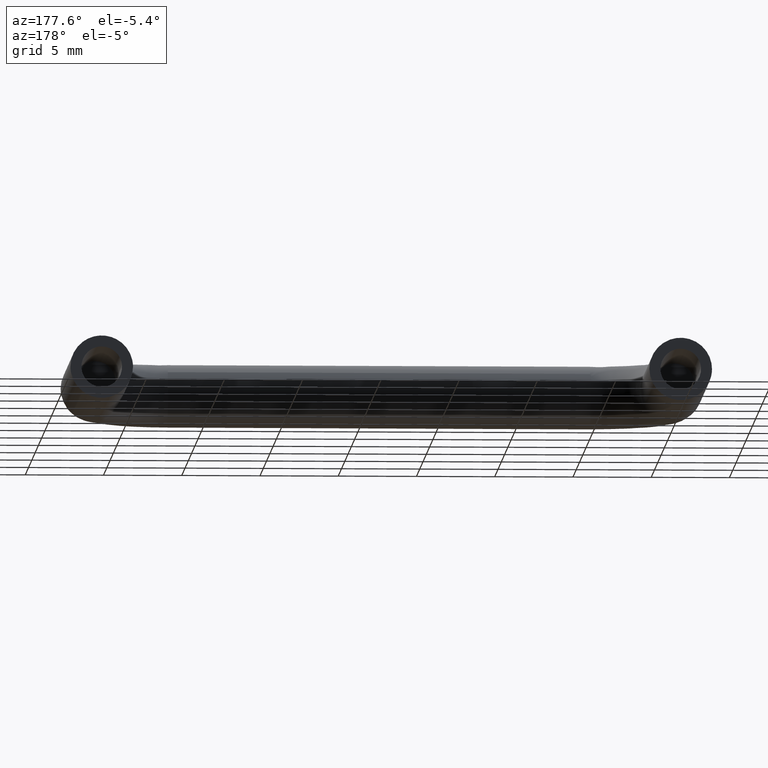
[diagram: clean part render]
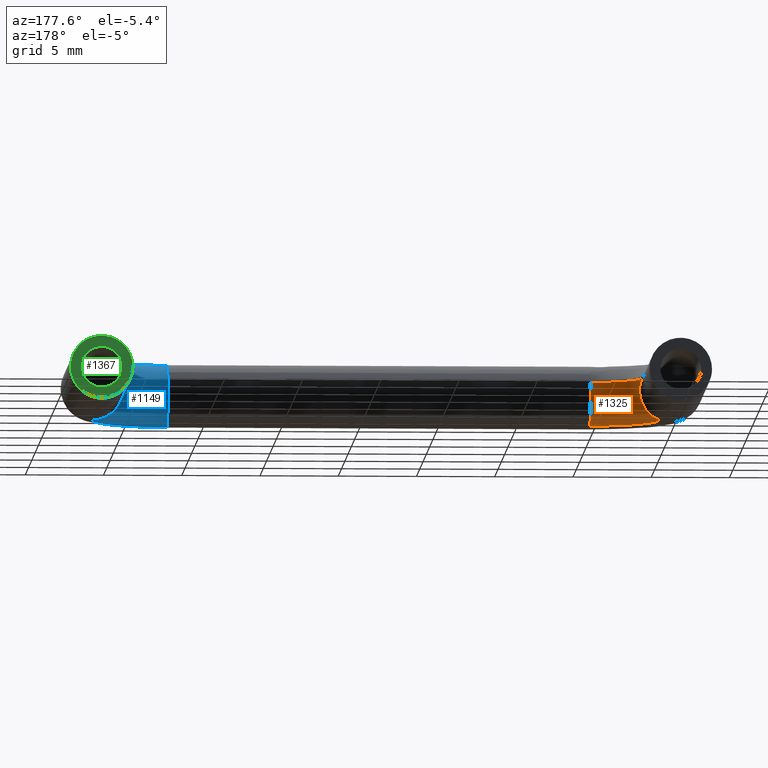
[diagram: same view with three faces highlighted in distinct colors, each labeled with its STEP entity id]
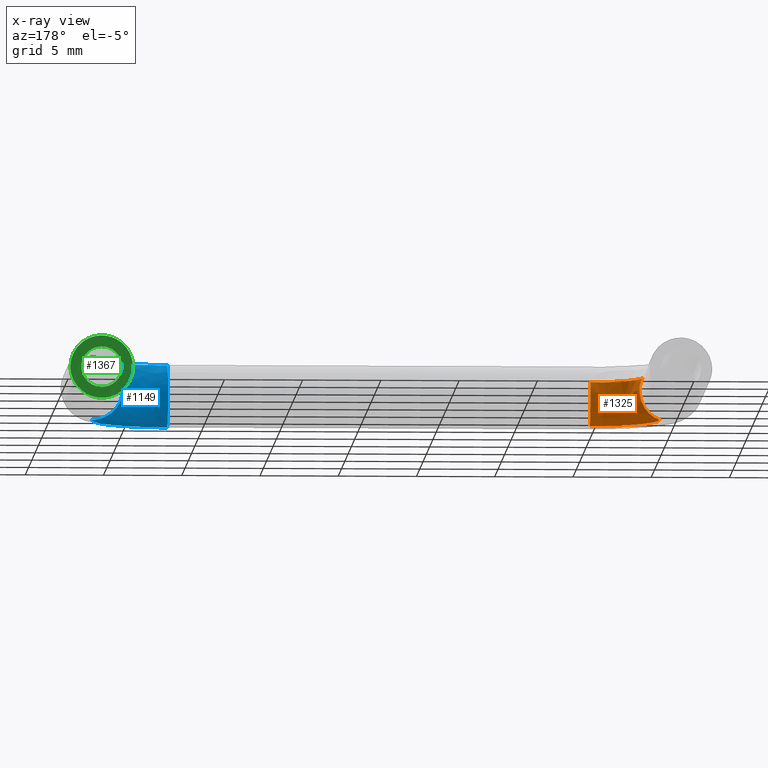
[diagram: x-ray of the same camera — body ghosted, the three highlighted faces saturated]
A machine part, auxiliary view with three faces highlighted in distinct colors.
The next image is the same camera in x-ray (body ghosted, the three faces saturated) — at least one of them is partly hidden behind the body in this view.
Their STEP definitions:

[orange] entity #1325 — the highlighted face is a freeform B-spline surface patch.
#802=CARTESIAN_POINT('',(4.999998076415995,-19.276704659011020,-1.864629681651536));
#803=VERTEX_POINT('',#802);
#819=CARTESIAN_POINT('',(5.0,-18.0,0.0));
#820=VERTEX_POINT('',#819);
#821=CARTESIAN_POINT('',(5.0,-18.0,0.0));
#822=CARTESIAN_POINT('',(4.999999038207998,-18.000000000000355,-1.369392187168714));
#823=CARTESIAN_POINT('',(4.999998076415995,-19.276704659011028,-1.864629681651536));
#831=(BOUNDED_CURVE()B_SPLINE_CURVE(2,(#821,#822,#823),.UNSPECIFIED.,.F.,.U.)B_SPLINE_CURVE_WITH_KNOTS((3,3),(0.0,0.188590419563113),.UNSPECIFIED.)CURVE()GEOMETRIC_REPRESENTATION_ITEM()RATIONAL_B_SPLINE_CURVE((1.0,0.779052579907122,0.891453693067869))REPRESENTATION_ITEM(''));
#832=EDGE_CURVE('',#820,#803,#831,.T.);
#834=CARTESIAN_POINT('',(5.000000000040116,-18.179788058653141,0.828751162037366));
#835=VERTEX_POINT('',#834);
#836=CARTESIAN_POINT('',(5.000000000040116,-18.179788058653138,0.828751162037366));
#837=CARTESIAN_POINT('',(5.0,-18.000000000000004,0.433877059606800));
#838=CARTESIAN_POINT('',(5.0,-18.0,0.0));
#846=(BOUNDED_CURVE()B_SPLINE_CURVE(2,(#836,#837,#838),.UNSPECIFIED.,.F.,.U.)B_SPLINE_CURVE_WITH_KNOTS((3,3),(0.929624510033230,1.0),.UNSPECIFIED.)CURVE()GEOMETRIC_REPRESENTATION_ITEM()RATIONAL_B_SPLINE_CURVE((0.881519651443544,0.917549984872236,1.0))REPRESENTATION_ITEM(''));
#847=EDGE_CURVE('',#835,#820,#846,.T.);
#972=CARTESIAN_POINT('',(1.820211941307585,-15.000000000132131,0.828751162123636));
#973=VERTEX_POINT('',#972);
#989=CARTESIAN_POINT('',(2.000000000000002,-15.0,0.0));
#990=VERTEX_POINT('',#989);
#991=CARTESIAN_POINT('',(1.820211941307586,-15.000000000132140,0.828751162123636));
#992=CARTESIAN_POINT('',(2.000000000000002,-14.999999999999998,0.433877059706052));
#993=CARTESIAN_POINT('',(2.000000000000002,-15.0,0.0));
#1001=(BOUNDED_CURVE()B_SPLINE_CURVE(2,(#991,#992,#993),.UNSPECIFIED.,.F.,.U.)B_SPLINE_CURVE_WITH_KNOTS((3,3),(0.929624510018459,1.0),.UNSPECIFIED.)CURVE()GEOMETRIC_REPRESENTATION_ITEM()RATIONAL_B_SPLINE_CURVE((0.881519651428418,0.917549984854930,1.0))REPRESENTATION_ITEM(''));
#1002=EDGE_CURVE('',#973,#990,#1001,.T.);
#1004=CARTESIAN_POINT('',(0.723292547146406,-15.000000000216991,-1.864630765390957));
#1005=VERTEX_POINT('',#1004);
#1006=CARTESIAN_POINT('',(2.000000000000002,-15.0,0.0));
#1007=CARTESIAN_POINT('',(2.000000000000002,-15.000000000000007,-1.369394387691899));
#1008=CARTESIAN_POINT('',(0.723292547146406,-15.000000000216989,-1.864630765390957));
#1016=(BOUNDED_CURVE()B_SPLINE_CURVE(2,(#1006,#1007,#1008),.UNSPECIFIED.,.F.,.U.)B_SPLINE_CURVE_WITH_KNOTS((3,3),(0.0,0.188590655656687),.UNSPECIFIED.)CURVE()GEOMETRIC_REPRESENTATION_ITEM()RATIONAL_B_SPLINE_CURVE((1.0,0.779052303306294,0.891453974494995))REPRESENTATION_ITEM(''));
#1017=EDGE_CURVE('',#990,#1005,#1016,.T.);
#1247=CARTESIAN_POINT('',(1.820211941307585,-15.000000000132136,0.828751162123636));
#1248=CARTESIAN_POINT('',(1.820211941584447,-17.580459706936388,0.828751161986568));
#1249=CARTESIAN_POINT('',(4.345400534915110,-18.111679873977490,0.828751161986568));
#1250=CARTESIAN_POINT('',(4.669157089520411,-18.179788058638351,0.828751161986568));
#1251=CARTESIAN_POINT('',(5.000000000040116,-18.179788058653138,0.828751162037366));
#1259=(BOUNDED_CURVE()B_SPLINE_CURVE(2,(#1247,#1248,#1249,#1250,#1251),.UNSPECIFIED.,.F.,.U.)B_SPLINE_CURVE_WITH_KNOTS((3,2,3),(-3.759886875613357,-2.0,-1.712481691703814),.UNSPECIFIED.)CURVE()GEOMETRIC_REPRESENTATION_ITEM()RATIONAL_B_SPLINE_CURVE((0.940720929692562,0.753120240891190,1.0,0.959666469660559,0.930929567731927))REPRESENTATION_ITEM(''));
#1260=EDGE_CURVE('',#973,#835,#1259,.T.);
#1266=CARTESIAN_POINT('',(0.723292547146406,-15.000000000216993,-1.864630765390957));
#1267=CARTESIAN_POINT('',(0.723292547371148,-18.470629945235213,-1.864630325652976));
#1268=CARTESIAN_POINT('',(4.119585846781998,-19.185101770405229,-1.864629804808369));
#1269=CARTESIAN_POINT('',(4.555026517399832,-19.276704604219240,-1.864629738030590));
#1270=CARTESIAN_POINT('',(4.999998076415995,-19.276704659011028,-1.864629681651536));
#1278=(BOUNDED_CURVE()B_SPLINE_CURVE(2,(#1266,#1267,#1268,#1269,#1270),.UNSPECIFIED.,.F.,.U.)B_SPLINE_CURVE_WITH_KNOTS((3,2,3),(-3.759886875588480,-2.0,-1.712482294589041),.UNSPECIFIED.)CURVE()GEOMETRIC_REPRESENTATION_ITEM()RATIONAL_B_SPLINE_CURVE((0.919560165698679,0.736179404170773,0.977505800795127,0.938079623593068,0.909989170393271))REPRESENTATION_ITEM(''));
#1279=EDGE_CURVE('',#1005,#803,#1278,.T.);
#1284=CARTESIAN_POINT('',(1.829057610929353,-14.762984255795258,0.828751161986568));
#1285=CARTESIAN_POINT('',(1.621585411090140,-17.538674939261359,0.828751161986568));
#1286=CARTESIAN_POINT('',(4.345400534915110,-18.111679873977490,0.828751161986568));
#1287=CARTESIAN_POINT('',(4.790975590397401,-18.205414835408803,0.828751161986568));
#1288=CARTESIAN_POINT('',(5.244950349064282,-18.170339323211202,0.828751161986568));
#1289=CARTESIAN_POINT('',(2.655503317712398,-14.824757892841816,-0.991460779383422));
#1290=CARTESIAN_POINT('',(2.502104793076159,-16.877017694493450,-0.991460779383422));
#1291=CARTESIAN_POINT('',(4.516009411142735,-17.300679812419887,-0.991460779383422));
#1292=CARTESIAN_POINT('',(4.845453819495583,-17.369984542410425,-0.991460779383422));
#1293=CARTESIAN_POINT('',(5.181108708466542,-17.344050794052119,-0.991460779383422));
#1294=CARTESIAN_POINT('',(0.840354919278127,-14.689082533371463,-1.820211941369991));
#1295=CARTESIAN_POINT('',(0.568192700745781,-18.330236070843721,-1.820211941369991));
#1296=CARTESIAN_POINT('',(4.141295832378219,-19.081904460069762,-1.820211941369991));
#1297=CARTESIAN_POINT('',(4.725801591302619,-19.204866066863154,-1.820211941369990));
#1298=CARTESIAN_POINT('',(5.321326088426657,-19.158853978384524,-1.820211941369990));
#1299=CARTESIAN_POINT('',(0.788406202084943,-14.685199566620485,-1.843930420682592));
#1300=CARTESIAN_POINT('',(0.512845020937557,-18.371826516296043,-1.843930420682592));
#1301=CARTESIAN_POINT('',(4.130571701090401,-19.132882295027009,-1.843930420682591));
#1302=CARTESIAN_POINT('',(4.722377199242282,-19.257379537100086,-1.843930420682591));
#1303=CARTESIAN_POINT('',(5.325339045727228,-19.210792815707961,-1.843930420682591));
#1304=CARTESIAN_POINT('',(0.735189776001748,-14.681221843507155,-1.864630725595186));
#1305=CARTESIAN_POINT('',(0.456146687070381,-18.414431896866855,-1.864630725595186));
#1306=CARTESIAN_POINT('',(4.119585867929932,-19.185104146353872,-1.864630725595185));
#1307=CARTESIAN_POINT('',(4.718869241456125,-19.311174497942798,-1.864630725595186));
#1308=CARTESIAN_POINT('',(5.329449931560401,-19.263999120822120,-1.864630725595186));
#1316=(BOUNDED_SURFACE()B_SPLINE_SURFACE(2,2,((#1284,#1289,#1294,#1299,#1304),(#1285,#1290,#1295,#1300,#1305),(#1286,#1291,#1296,#1301,#1306),(#1287,#1292,#1297,#1302,#1307),(#1288,#1293,#1298,#1303,#1308)),.UNSPECIFIED.,.F.,.F.,.U.)B_SPLINE_SURFACE_WITH_KNOTS((3,2,3),(3,2,3),(0.0,6.428965344608820,7.774676014777381),(0.0,3.313708498984759,3.446256712536203),.UNSPECIFIED.)GEOMETRIC_REPRESENTATION_ITEM()RATIONAL_B_SPLINE_SURFACE(((0.963991257828157,0.681644755414839,0.963991257828157,0.952697408502289,0.942307066260837),(0.738773922018271,0.522392050022901,0.738773922018271,0.730118655392770,0.722155809436964),(1.0,0.707106781186548,1.0,0.988284282420452,0.977505821353428),(0.945320171812547,0.668442303881085,0.945320171812547,0.934245067657341,0.924055970989588),(0.911953783596509,0.644848704509821,0.911953783596509,0.901269590622292,0.891440132270872)))REPRESENTATION_ITEM('')SURFACE());
#1317=ORIENTED_EDGE('',*,*,#832,.T.);
#1318=ORIENTED_EDGE('',*,*,#1279,.F.);
#1319=ORIENTED_EDGE('',*,*,#1017,.F.);
#1320=ORIENTED_EDGE('',*,*,#1002,.F.);
#1321=ORIENTED_EDGE('',*,*,#1260,.T.);
#1322=ORIENTED_EDGE('',*,*,#847,.T.);
#1323=EDGE_LOOP('',(#1317,#1318,#1319,#1320,#1321,#1322));
#1324=FACE_OUTER_BOUND('',#1323,.T.);
#1325=ADVANCED_FACE('',(#1324),#1316,.T.);

[blue] entity #1149 — the highlighted face is a freeform B-spline surface patch.
#426=CARTESIAN_POINT('',(36.974867920065897,-15.000000000115220,-1.999842088405528));
#427=VERTEX_POINT('',#426);
#445=CARTESIAN_POINT('',(34.999999999999993,-15.0,0.0));
#446=VERTEX_POINT('',#445);
#447=CARTESIAN_POINT('',(34.999999999999993,-15.0,0.0));
#448=CARTESIAN_POINT('',(35.000000000000007,-14.999999999999996,-1.975023859483976));
#449=CARTESIAN_POINT('',(36.974867920065904,-15.000000000115220,-1.999842088405528));
#457=(BOUNDED_CURVE()B_SPLINE_CURVE(2,(#447,#448,#449),.UNSPECIFIED.,.F.,.U.)B_SPLINE_CURVE_WITH_KNOTS((3,3),(0.0,0.247784295892287),.UNSPECIFIED.)CURVE()GEOMETRIC_REPRESENTATION_ITEM()RATIONAL_B_SPLINE_CURVE((1.0,0.709702640018732,0.994854295576251))REPRESENTATION_ITEM(''));
#458=EDGE_CURVE('',#446,#427,#457,.T.);
#460=CARTESIAN_POINT('',(35.754971735815722,-14.999999999999980,1.565217116370957));
#461=VERTEX_POINT('',#460);
#462=CARTESIAN_POINT('',(35.754971735815722,-14.999999999999982,1.565217116370958));
#463=CARTESIAN_POINT('',(35.000000000000007,-14.999999999999995,0.964686276324076));
#464=CARTESIAN_POINT('',(34.999999999999993,-15.0,0.0));
#472=(BOUNDED_CURVE()B_SPLINE_CURVE(2,(#462,#463,#464),.UNSPECIFIED.,.F.,.U.)B_SPLINE_CURVE_WITH_KNOTS((3,3),(0.857863779800497,1.0),.UNSPECIFIED.)CURVE()GEOMETRIC_REPRESENTATION_ITEM()RATIONAL_B_SPLINE_CURVE((0.856305649992272,0.833477059823160,1.0))REPRESENTATION_ITEM(''));
#473=EDGE_CURVE('',#461,#446,#472,.T.);
#587=CARTESIAN_POINT('',(37.139466504186352,-15.000000000283370,1.995131347608482));
#588=VERTEX_POINT('',#587);
#589=CARTESIAN_POINT('',(37.139466504186345,-15.000000000283373,1.995131347608482));
#590=CARTESIAN_POINT('',(37.069818232788677,-14.999999999999996,2.0));
#591=CARTESIAN_POINT('',(37.0,-15.0,2.0));
#592=CARTESIAN_POINT('',(36.301569456475768,-15.000000000000005,2.000000000000000));
#593=CARTESIAN_POINT('',(35.754971735815708,-14.999999999999984,1.565217116370958));
#601=(BOUNDED_CURVE()B_SPLINE_CURVE(2,(#589,#590,#591,#592,#593),.UNSPECIFIED.,.F.,.U.)B_SPLINE_CURVE_WITH_KNOTS((3,2,3),(0.737833686356618,0.750000000000000,0.857863779800497),.UNSPECIFIED.)CURVE()GEOMETRIC_REPRESENTATION_ITEM()RATIONAL_B_SPLINE_CURVE((0.972879876009488,0.985746276943583,1.0,0.873629721363388,0.856305649992272))REPRESENTATION_ITEM(''));
#602=EDGE_CURVE('',#588,#461,#601,.T.);
#642=CARTESIAN_POINT('',(32.000000000036209,-20.139466503343179,1.995131347667422));
#643=VERTEX_POINT('',#642);
#644=CARTESIAN_POINT('',(32.0,-18.591260098857589,1.419666119525739));
#645=VERTEX_POINT('',#644);
#646=CARTESIAN_POINT('',(32.000000000036216,-20.139466503343176,1.995131347667422));
#647=CARTESIAN_POINT('',(32.0,-20.069818231942428,2.000000000000000));
#648=CARTESIAN_POINT('',(32.0,-20.0,2.0));
#649=CARTESIAN_POINT('',(32.0,-19.176095071274911,2.000000000000000));
#650=CARTESIAN_POINT('',(31.999999999999993,-18.591260098857589,1.419666119525738));
#658=(BOUNDED_CURVE()B_SPLINE_CURVE(2,(#646,#647,#648,#649,#650),.UNSPECIFIED.,.F.,.U.)B_SPLINE_CURVE_WITH_KNOTS((3,2,3),(0.737833686501982,0.750000000000000,0.874417114703642),.UNSPECIFIED.)CURVE()GEOMETRIC_REPRESENTATION_ITEM()RATIONAL_B_SPLINE_CURVE((0.972879876316946,0.985746277113888,1.0,0.854236283195871,0.853556574977730))REPRESENTATION_ITEM(''));
#659=EDGE_CURVE('',#643,#645,#658,.T.);
#756=CARTESIAN_POINT('',(32.0,-18.0,0.0));
#757=VERTEX_POINT('',#756);
#758=CARTESIAN_POINT('',(31.999999999999993,-18.591260098857589,1.419666119525738));
#759=CARTESIAN_POINT('',(32.0,-18.000000000000007,0.832956562603464));
#760=CARTESIAN_POINT('',(32.0,-18.0,0.0));
#768=(BOUNDED_CURVE()B_SPLINE_CURVE(2,(#758,#759,#760),.UNSPECIFIED.,.F.,.U.)B_SPLINE_CURVE_WITH_KNOTS((3,3),(0.874417114703642,1.0),.UNSPECIFIED.)CURVE()GEOMETRIC_REPRESENTATION_ITEM()RATIONAL_B_SPLINE_CURVE((0.853556574977730,0.852870497990676,1.0))REPRESENTATION_ITEM(''));
#769=EDGE_CURVE('',#645,#757,#768,.T.);
#771=CARTESIAN_POINT('',(32.000000000309427,-19.974867919650571,-1.999842088400309));
#772=VERTEX_POINT('',#771);
#773=CARTESIAN_POINT('',(32.0,-18.0,0.0));
#774=CARTESIAN_POINT('',(32.000000000000007,-18.0,-1.975023858663560));
#775=CARTESIAN_POINT('',(32.000000000309427,-19.974867919650574,-1.999842088400309));
#783=(BOUNDED_CURVE()B_SPLINE_CURVE(2,(#773,#774,#775),.UNSPECIFIED.,.F.,.U.)B_SPLINE_CURVE_WITH_KNOTS((3,3),(0.0,0.247784295819239),.UNSPECIFIED.)CURVE()GEOMETRIC_REPRESENTATION_ITEM()RATIONAL_B_SPLINE_CURVE((1.0,0.709702640104314,0.994854295408121))REPRESENTATION_ITEM(''));
#784=EDGE_CURVE('',#757,#772,#783,.T.);
#1086=CARTESIAN_POINT('',(31.642616424758437,-20.127025627529385,1.995131355377935));
#1087=CARTESIAN_POINT('',(37.537966016255410,-20.537965862154927,1.995131355377935));
#1088=CARTESIAN_POINT('',(37.127025617584749,-14.642616282092858,1.995131355377935));
#1089=CARTESIAN_POINT('',(31.646586975436666,-20.070064097976729,1.999122819776260));
#1090=CARTESIAN_POINT('',(37.476438916955814,-20.476438764567408,1.999122819776260));
#1091=CARTESIAN_POINT('',(37.070064088142573,-14.646586834356125,1.999122819776261));
#1092=CARTESIAN_POINT('',(31.650566901038612,-20.012968075746208,1.999842088407632));
#1093=CARTESIAN_POINT('',(37.414766545146705,-20.414766394474380,1.999842088407632));
#1094=CARTESIAN_POINT('',(37.012968066022815,-14.650566761546829,1.999842088407631));
#1095=CARTESIAN_POINT('',(31.789630115157767,-18.017966872477039,2.024974168174338));
#1096=CARTESIAN_POINT('',(35.259862382629905,-18.259862291920356,2.024974168174337));
#1097=CARTESIAN_POINT('',(35.017966866623247,-14.789630031179273,2.024974168174339));
#1098=CARTESIAN_POINT('',(31.791377727036792,-17.992895628269377,0.025132079766706));
#1099=CARTESIAN_POINT('',(35.232781632796751,-18.232781542840765,0.025132079766706));
#1100=CARTESIAN_POINT('',(34.992895622464211,-14.791377643755926,0.025132079766706));
#1101=CARTESIAN_POINT('',(31.793125338915814,-17.967824384061721,-1.974710008640927));
#1102=CARTESIAN_POINT('',(35.205700882963583,-18.205700793761157,-1.974710008640926));
#1103=CARTESIAN_POINT('',(34.967824378305181,-14.793125256332580,-1.974710008640926));
#1104=CARTESIAN_POINT('',(31.654062124796642,-19.962825587330876,-1.999842088407632));
#1105=CARTESIAN_POINT('',(37.360605045480384,-20.360604896315191,-1.999842088407632));
#1106=CARTESIAN_POINT('',(36.962825577704741,-14.654061986700141,-1.999842088407631));
#1114=(BOUNDED_SURFACE()B_SPLINE_SURFACE(2,2,((#1086,#1089,#1092,#1095,#1098,#1101,#1104),(#1087,#1090,#1093,#1096,#1099,#1102,#1105),(#1088,#1091,#1094,#1097,#1100,#1103,#1106)),.UNSPECIFIED.,.F.,.F.,.U.)B_SPLINE_SURFACE_WITH_KNOTS((3,3),(3,2,2,3),(0.0,9.366029501457296),(0.0,0.132548213551443,3.446256712536207,6.759965211520972),.UNSPECIFIED.)GEOMETRIC_REPRESENTATION_ITEM()RATIONAL_B_SPLINE_SURFACE(((0.895729732449210,0.905606490046838,0.916342095240933,0.647951709431553,0.916342095240933,0.647951709431553,0.916342095240933),(0.587800221482116,0.594281596491894,0.601326568744382,0.425202094466791,0.601326568744382,0.425202094466791,0.601326568744382),(0.895729743804760,0.905606501527600,0.916342106857795,0.647951717645915,0.916342106857795,0.647951717645915,0.916342106857795)))REPRESENTATION_ITEM('')SURFACE());
#1115=ORIENTED_EDGE('',*,*,#602,.T.);
#1116=ORIENTED_EDGE('',*,*,#473,.T.);
#1117=ORIENTED_EDGE('',*,*,#458,.T.);
#1118=CARTESIAN_POINT('',(32.000000000309427,-19.974867919650571,-1.999842088400309));
#1119=CARTESIAN_POINT('',(36.974867920002865,-19.974867919614450,-1.999842088407632));
#1120=CARTESIAN_POINT('',(36.974867920065904,-15.000000000115215,-1.999842088405529));
#1128=(BOUNDED_CURVE()B_SPLINE_CURVE(2,(#1118,#1119,#1120),.UNSPECIFIED.,.F.,.U.)B_SPLINE_CURVE_WITH_KNOTS((3,3),(-1.734750791529143,-0.265249208389729),.UNSPECIFIED.)CURVE()GEOMETRIC_REPRESENTATION_ITEM()RATIONAL_B_SPLINE_CURVE((0.889029723530633,0.628638946248737,0.889029723559385))REPRESENTATION_ITEM(''));
#1129=EDGE_CURVE('',#772,#427,#1128,.T.);
#1130=ORIENTED_EDGE('',*,*,#1129,.F.);
#1131=ORIENTED_EDGE('',*,*,#784,.F.);
#1132=ORIENTED_EDGE('',*,*,#769,.F.);
#1133=ORIENTED_EDGE('',*,*,#659,.F.);
#1134=CARTESIAN_POINT('',(32.000000000036209,-20.139466503343183,1.995131347667422));
#1135=CARTESIAN_POINT('',(37.139466502584156,-20.139466503078477,1.995131347680864));
#1136=CARTESIAN_POINT('',(37.139466504186338,-15.000000000283373,1.995131347608482));
#1144=(BOUNDED_CURVE()B_SPLINE_CURVE(2,(#1134,#1135,#1136),.UNSPECIFIED.,.F.,.U.)B_SPLINE_CURVE_WITH_KNOTS((3,3),(-1.734750791643761,-0.265249208456181),.UNSPECIFIED.)CURVE()GEOMETRIC_REPRESENTATION_ITEM()RATIONAL_B_SPLINE_CURVE((0.869031711870188,0.614498216555533,0.869031711835566))REPRESENTATION_ITEM(''));
#1145=EDGE_CURVE('',#643,#588,#1144,.T.);
#1146=ORIENTED_EDGE('',*,*,#1145,.T.);
#1147=EDGE_LOOP('',(#1115,#1116,#1117,#1130,#1131,#1132,#1133,#1146));
#1148=FACE_OUTER_BOUND('',#1147,.T.);
#1149=ADVANCED_FACE('',(#1148),#1114,.T.);

[green] entity #1367 — the highlighted face is a freeform B-spline surface patch.
#261=CARTESIAN_POINT('',(35.704007466147630,-2.775558E-017,0.101996824455019));
#262=VERTEX_POINT('',#261);
#268=CARTESIAN_POINT('',(37.0,0.0,1.300000000000000));
#269=VERTEX_POINT('',#268);
#270=CARTESIAN_POINT('',(37.0,0.0,1.300000000000000));
#271=CARTESIAN_POINT('',(35.798292360860728,0.0,1.300000000000000));
#272=CARTESIAN_POINT('',(35.704007466147630,-2.775558E-017,0.101996824455019));
#280=(BOUNDED_CURVE()B_SPLINE_CURVE(2,(#270,#271,#272),.UNSPECIFIED.,.F.,.U.)B_SPLINE_CURVE_WITH_KNOTS((3,3),(0.0,0.236331300630434),.UNSPECIFIED.)CURVE()GEOMETRIC_REPRESENTATION_ITEM()RATIONAL_B_SPLINE_CURVE((1.0,0.723120658607931,0.969723356166946))REPRESENTATION_ITEM(''));
#281=EDGE_CURVE('',#269,#262,#280,.T.);
#283=CARTESIAN_POINT('',(38.295992533852370,-2.775558E-017,-0.101996824455019));
#284=VERTEX_POINT('',#283);
#285=CARTESIAN_POINT('',(38.295992533852370,-2.775558E-017,-0.101996824455019));
#286=CARTESIAN_POINT('',(38.299999999999997,0.0,-0.051077139118831));
#287=CARTESIAN_POINT('',(38.299999999999997,0.0,0.0));
#288=CARTESIAN_POINT('',(38.299999999999997,0.0,1.300000000000000));
#289=CARTESIAN_POINT('',(37.0,0.0,1.300000000000000));
#297=(BOUNDED_CURVE()B_SPLINE_CURVE(2,(#285,#286,#287,#288,#289),.UNSPECIFIED.,.F.,.U.)B_SPLINE_CURVE_WITH_KNOTS((3,2,3),(0.736331300630434,0.750000000000000,1.0),.UNSPECIFIED.)CURVE()GEOMETRIC_REPRESENTATION_ITEM()RATIONAL_B_SPLINE_CURVE((0.969723356166946,0.983986122578617,1.0,0.707106781186548,1.0))REPRESENTATION_ITEM(''));
#298=EDGE_CURVE('',#284,#269,#297,.T.);
#374=CARTESIAN_POINT('',(37.0,0.0,-1.300000000000000));
#375=VERTEX_POINT('',#374);
#376=CARTESIAN_POINT('',(37.0,0.0,-1.300000000000000));
#377=CARTESIAN_POINT('',(38.201707639139272,0.0,-1.300000000000000));
#378=CARTESIAN_POINT('',(38.295992533852377,-2.775558E-017,-0.101996824455019));
#386=(BOUNDED_CURVE()B_SPLINE_CURVE(2,(#376,#377,#378),.UNSPECIFIED.,.F.,.U.)B_SPLINE_CURVE_WITH_KNOTS((3,3),(0.500000000000000,0.736331300630435),.UNSPECIFIED.)CURVE()GEOMETRIC_REPRESENTATION_ITEM()RATIONAL_B_SPLINE_CURVE((1.0,0.723120658607929,0.969723356166948))REPRESENTATION_ITEM(''));
#387=EDGE_CURVE('',#375,#284,#386,.T.);
#389=CARTESIAN_POINT('',(35.704007466147630,-2.775558E-017,0.101996824455019));
#390=CARTESIAN_POINT('',(35.700000000000010,0.0,0.051077139118831));
#391=CARTESIAN_POINT('',(35.700000000000003,0.0,0.0));
#392=CARTESIAN_POINT('',(35.700000000000003,0.0,-1.300000000000000));
#393=CARTESIAN_POINT('',(37.0,0.0,-1.300000000000000));
#401=(BOUNDED_CURVE()B_SPLINE_CURVE(2,(#389,#390,#391,#392,#393),.UNSPECIFIED.,.F.,.U.)B_SPLINE_CURVE_WITH_KNOTS((3,2,3),(0.236331300630434,0.250000000000000,0.500000000000000),.UNSPECIFIED.)CURVE()GEOMETRIC_REPRESENTATION_ITEM()RATIONAL_B_SPLINE_CURVE((0.969723356166946,0.983986122578617,1.0,0.707106781186548,1.0))REPRESENTATION_ITEM(''));
#402=EDGE_CURVE('',#262,#375,#401,.T.);
#475=CARTESIAN_POINT('',(35.754972200187481,4.461709E-015,1.565217485747734));
#476=VERTEX_POINT('',#475);
#482=CARTESIAN_POINT('',(34.999999999999993,5.204170E-015,0.0));
#483=VERTEX_POINT('',#482);
#484=CARTESIAN_POINT('',(35.754972200187481,4.461709E-015,1.565217485747734));
#485=CARTESIAN_POINT('',(35.0,5.204170E-015,0.964686642030370));
#486=CARTESIAN_POINT('',(34.999999999999993,5.204170E-015,0.0));
#494=(BOUNDED_CURVE()B_SPLINE_CURVE(2,(#484,#485,#486),.UNSPECIFIED.,.F.,.U.)B_SPLINE_CURVE_WITH_KNOTS((3,3),(0.857863734890325,1.0),.UNSPECIFIED.)CURVE()GEOMETRIC_REPRESENTATION_ITEM()RATIONAL_B_SPLINE_CURVE((0.856305664418394,0.833477007207620,1.0))REPRESENTATION_ITEM(''));
#495=EDGE_CURVE('',#476,#483,#494,.T.);
#497=CARTESIAN_POINT('',(38.245027799812519,5.405398E-015,-1.565217485747733));
#498=VERTEX_POINT('',#497);
#499=CARTESIAN_POINT('',(34.999999999999993,5.204170E-015,0.0));
#500=CARTESIAN_POINT('',(34.999999999999993,5.204170E-015,-2.000000000000000));
#501=CARTESIAN_POINT('',(37.0,5.204170E-015,-2.0));
#502=CARTESIAN_POINT('',(37.698430210661726,5.204170E-015,-2.000000000000000));
#503=CARTESIAN_POINT('',(38.245027799812519,5.405398E-015,-1.565217485747733));
#511=(BOUNDED_CURVE()B_SPLINE_CURVE(2,(#499,#500,#501,#502,#503),.UNSPECIFIED.,.F.,.U.)B_SPLINE_CURVE_WITH_KNOTS((3,2,3),(0.0,0.250000000000000,0.357863734890326),.UNSPECIFIED.)CURVE()GEOMETRIC_REPRESENTATION_ITEM()RATIONAL_B_SPLINE_CURVE((1.0,0.707106781186548,1.0,0.873629773978926,0.856305664418394))REPRESENTATION_ITEM(''));
#512=EDGE_CURVE('',#483,#498,#511,.T.);
#556=CARTESIAN_POINT('',(39.0,5.204170E-015,0.0));
#557=VERTEX_POINT('',#556);
#558=CARTESIAN_POINT('',(38.245027799812519,5.405398E-015,-1.565217485747733));
#559=CARTESIAN_POINT('',(39.0,5.204170E-015,-0.964686642030361));
#560=CARTESIAN_POINT('',(39.0,5.204170E-015,0.0));
#568=(BOUNDED_CURVE()B_SPLINE_CURVE(2,(#558,#559,#560),.UNSPECIFIED.,.F.,.U.)B_SPLINE_CURVE_WITH_KNOTS((3,3),(0.357863734890326,0.500000000000000),.UNSPECIFIED.)CURVE()GEOMETRIC_REPRESENTATION_ITEM()RATIONAL_B_SPLINE_CURVE((0.856305664418394,0.833477007207621,1.0))REPRESENTATION_ITEM(''));
#569=EDGE_CURVE('',#498,#557,#568,.T.);
#571=CARTESIAN_POINT('',(39.0,5.204170E-015,0.0));
#572=CARTESIAN_POINT('',(39.000000000000007,5.204170E-015,2.000000000000000));
#573=CARTESIAN_POINT('',(37.0,5.204170E-015,2.0));
#574=CARTESIAN_POINT('',(36.301569789338281,5.204170E-015,2.000000000000000));
#575=CARTESIAN_POINT('',(35.754972200187488,4.461709E-015,1.565217485747734));
#583=(BOUNDED_CURVE()B_SPLINE_CURVE(2,(#571,#572,#573,#574,#575),.UNSPECIFIED.,.F.,.U.)B_SPLINE_CURVE_WITH_KNOTS((3,2,3),(0.500000000000000,0.750000000000000,0.857863734890325),.UNSPECIFIED.)CURVE()GEOMETRIC_REPRESENTATION_ITEM()RATIONAL_B_SPLINE_CURVE((1.0,0.707106781186548,1.0,0.873629773978927,0.856305664418394))REPRESENTATION_ITEM(''));
#584=EDGE_CURVE('',#557,#476,#583,.T.);
#1350=CARTESIAN_POINT('',(39.199799992247222,5.204170E-015,-2.199799198391974));
#1351=CARTESIAN_POINT('',(34.800199900464413,5.204170E-015,-2.199799198391974));
#1352=CARTESIAN_POINT('',(39.199799992247222,5.204170E-015,2.199799162629187));
#1353=CARTESIAN_POINT('',(34.800199900464413,5.204170E-015,2.199799162629187));
#1354=B_SPLINE_SURFACE_WITH_KNOTS('',1,1,((#1350,#1352),(#1351,#1353)),.UNSPECIFIED.,.F.,.F.,.U.,(2,2),(2,2),(0.0,4.399600091782816),(0.0,4.399598361021161),.UNSPECIFIED.);
#1355=ORIENTED_EDGE('',*,*,#495,.F.);
#1356=ORIENTED_EDGE('',*,*,#584,.F.);
#1357=ORIENTED_EDGE('',*,*,#569,.F.);
#1358=ORIENTED_EDGE('',*,*,#512,.F.);
#1359=EDGE_LOOP('',(#1355,#1356,#1357,#1358));
#1360=FACE_OUTER_BOUND('',#1359,.T.);
#1361=ORIENTED_EDGE('',*,*,#387,.T.);
#1362=ORIENTED_EDGE('',*,*,#298,.T.);
#1363=ORIENTED_EDGE('',*,*,#281,.T.);
#1364=ORIENTED_EDGE('',*,*,#402,.T.);
#1365=EDGE_LOOP('',(#1361,#1362,#1363,#1364));
#1366=FACE_BOUND('',#1365,.T.);
#1367=ADVANCED_FACE('',(#1360,#1366),#1354,.T.);